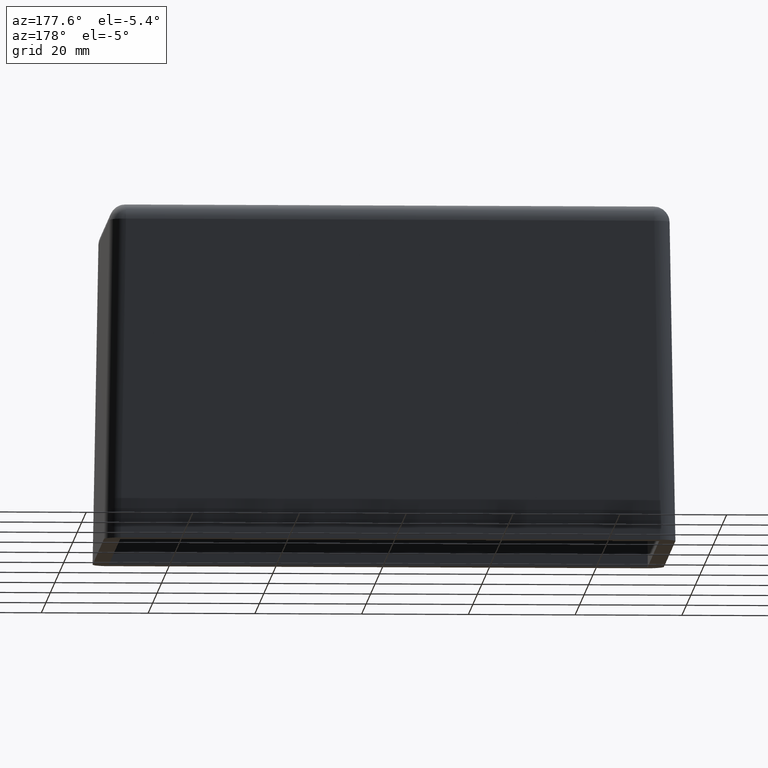
[diagram: clean part render]
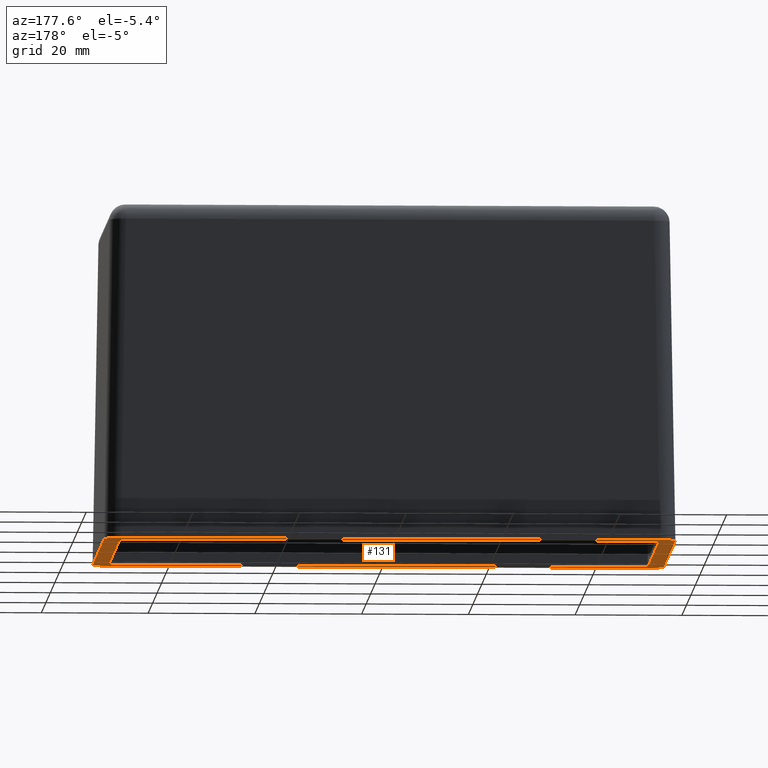
[diagram: same view with one face highlighted and labeled with its STEP entity id]
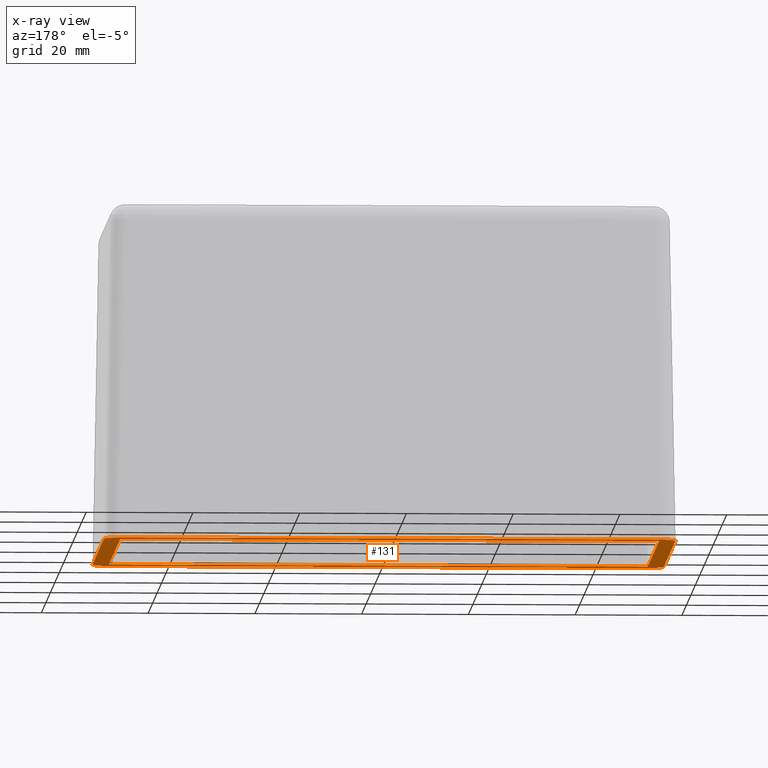
[diagram: x-ray of the same camera — body ghosted, the highlighted face saturated]
A machine part, auxiliary view. The second image highlights one B-rep face of the part: STEP entity #131.
The next image is the same camera in x-ray: the body ghosted, the highlighted face saturated — about 0% of this face is hidden behind the body in this view.
In plain terms, the highlighted planar face has unit normal (0, 0, 1).
Its self-contained STEP definition (entity closure, byte-faithful):
#131 = ADVANCED_FACE( '', ( #322, #323 ), #324, .F. );
#322 = FACE_OUTER_BOUND( '', #581, .T. );
#323 = FACE_BOUND( '', #582, .T. );
#324 = PLANE( '', #583 );
#581 = EDGE_LOOP( '', ( #1254, #1255, #1256, #1257, #1258, #1259, #1260, #1261 ) );
#582 = EDGE_LOOP( '', ( #1262, #1263, #1264, #1265 ) );
#583 = AXIS2_PLACEMENT_3D( '', #1266, #1267, #1268 );
#1254 = ORIENTED_EDGE( '', *, *, #1866, .F. );
#1255 = ORIENTED_EDGE( '', *, *, #1839, .T. );
#1256 = ORIENTED_EDGE( '', *, *, #1754, .F. );
#1257 = ORIENTED_EDGE( '', *, *, #1827, .T. );
#1258 = ORIENTED_EDGE( '', *, *, #1865, .F. );
#1259 = ORIENTED_EDGE( '', *, *, #1832, .T. );
#1260 = ORIENTED_EDGE( '', *, *, #1867, .F. );
#1261 = ORIENTED_EDGE( '', *, *, #1842, .T. );
#1262 = ORIENTED_EDGE( '', *, *, #1856, .F. );
#1263 = ORIENTED_EDGE( '', *, *, #1847, .F. );
#1264 = ORIENTED_EDGE( '', *, *, #1851, .F. );
#1265 = ORIENTED_EDGE( '', *, *, #1854, .F. );
#1266 = CARTESIAN_POINT( '', ( -53.0000000000000, -28.0000000000000, 0.000000000000000 ) );
#1267 = DIRECTION( '', ( 0.000000000000000, 0.000000000000000, 1.00000000000000 ) );
#1268 = DIRECTION( '', ( 0.000000000000000, -1.00000000000000, 0.000000000000000 ) );
#1754 = EDGE_CURVE( '', #2085, #2086, #2087, .F. );
#1827 = EDGE_CURVE( '', #2085, #2206, #2207, .F. );
#1832 = EDGE_CURVE( '', #2213, #2214, #2215, .F. );
#1839 = EDGE_CURVE( '', #2224, #2086, #2225, .F. );
#1842 = EDGE_CURVE( '', #2228, #2229, #2230, .F. );
#1847 = EDGE_CURVE( '', #2236, #2238, #2239, .T. );
#1851 = EDGE_CURVE( '', #2243, #2236, #2245, .T. );
#1854 = EDGE_CURVE( '', #2248, #2243, #2250, .T. );
#1856 = EDGE_CURVE( '', #2238, #2248, #2252, .T. );
#1865 = EDGE_CURVE( '', #2213, #2206, #2265, .F. );
#1866 = EDGE_CURVE( '', #2224, #2229, #2266, .F. );
#1867 = EDGE_CURVE( '', #2228, #2214, #2267, .F. );
#2085 = VERTEX_POINT( '', #2688 );
#2086 = VERTEX_POINT( '', #2689 );
#2087 = LINE( '', #2690, #2691 );
#2206 = VERTEX_POINT( '', #3062 );
#2207 = ELLIPSE( '', #3063, 3.00091389867315, 3.00000000000000 );
#2213 = VERTEX_POINT( '', #3071 );
#2214 = VERTEX_POINT( '', #3072 );
#2215 = ELLIPSE( '', #3073, 3.00091389867315, 3.00000000000000 );
#2224 = VERTEX_POINT( '', #3084 );
#2225 = ELLIPSE( '', #3085, 3.00091389867315, 3.00000000000000 );
#2228 = VERTEX_POINT( '', #3090 );
#2229 = VERTEX_POINT( '', #3091 );
#2230 = ELLIPSE( '', #3092, 3.00091389867315, 3.00000000000000 );
#2236 = VERTEX_POINT( '', #3101 );
#2238 = VERTEX_POINT( '', #3104 );
#2239 = LINE( '', #3105, #3106 );
#2243 = VERTEX_POINT( '', #3112 );
#2245 = LINE( '', #3115, #3116 );
#2248 = VERTEX_POINT( '', #3120 );
#2250 = LINE( '', #3123, #3124 );
#2252 = LINE( '', #3127, #3128 );
#2265 = LINE( '', #3149, #3150 );
#2266 = LINE( '', #3151, #3152 );
#2267 = LINE( '', #3153, #3154 );
#2688 = CARTESIAN_POINT( '', ( -53.5236519478465, 25.5241088623774, 0.000000000000000 ) );
#2689 = CARTESIAN_POINT( '', ( -53.5236519478465, -25.5241088623774, 0.000000000000000 ) );
#2690 = CARTESIAN_POINT( '', ( -53.5236519478465, -28.0000000000000, 0.000000000000000 ) );
#2691 = VECTOR( '', #3400, 1000.00000000000 );
#3062 = CARTESIAN_POINT( '', ( -50.5241088623774, 28.5236519478465, 0.000000000000000 ) );
#3063 = AXIS2_PLACEMENT_3D( '', #3447, #3448, #3449 );
#3071 = CARTESIAN_POINT( '', ( 50.5241088623774, 28.5236519478465, 0.000000000000000 ) );
#3072 = CARTESIAN_POINT( '', ( 53.5236519478465, 25.5241088623774, 0.000000000000000 ) );
#3073 = AXIS2_PLACEMENT_3D( '', #3458, #3459, #3460 );
#3084 = CARTESIAN_POINT( '', ( -50.5241088623774, -28.5236519478465, 0.000000000000000 ) );
#3085 = AXIS2_PLACEMENT_3D( '', #3475, #3476, #3477 );
#3090 = CARTESIAN_POINT( '', ( 53.5236519478465, -25.5241088623774, 0.000000000000000 ) );
#3091 = CARTESIAN_POINT( '', ( 50.5241088623774, -28.5236519478465, 0.000000000000000 ) );
#3092 = AXIS2_PLACEMENT_3D( '', #3480, #3481, #3482 );
#3101 = CARTESIAN_POINT( '', ( 50.4887418179901, 25.4887418179901, 0.000000000000000 ) );
#3104 = CARTESIAN_POINT( '', ( 50.4887418179901, -25.4887418179901, 0.000000000000000 ) );
#3105 = CARTESIAN_POINT( '', ( 50.4887418179901, 25.4887418179901, 0.000000000000000 ) );
#3106 = VECTOR( '', #3487, 1000.00000000000 );
#3112 = CARTESIAN_POINT( '', ( -50.4887418179901, 25.4887418179901, 0.000000000000000 ) );
#3115 = CARTESIAN_POINT( '', ( -50.4887418179901, 25.4887418179901, 0.000000000000000 ) );
#3116 = VECTOR( '', #3491, 1000.00000000000 );
#3120 = CARTESIAN_POINT( '', ( -50.4887418179901, -25.4887418179901, 0.000000000000000 ) );
#3123 = CARTESIAN_POINT( '', ( -50.4887418179901, -25.4887418179901, 0.000000000000000 ) );
#3124 = VECTOR( '', #3494, 1000.00000000000 );
#3127 = CARTESIAN_POINT( '', ( 50.4887418179901, -25.4887418179901, 0.000000000000000 ) );
#3128 = VECTOR( '', #3496, 1000.00000000000 );
#3149 = CARTESIAN_POINT( '', ( -53.0000000000000, 28.5236519478465, 0.000000000000000 ) );
#3150 = VECTOR( '', #3505, 1000.00000000000 );
#3151 = CARTESIAN_POINT( '', ( -53.0000000000000, -28.5236519478465, 0.000000000000000 ) );
#3152 = VECTOR( '', #3506, 1000.00000000000 );
#3153 = CARTESIAN_POINT( '', ( 53.5236519478465, -28.0000000000000, 0.000000000000000 ) );
#3154 = VECTOR( '', #3507, 1000.00000000000 );
#3400 = DIRECTION( '', ( 0.000000000000000, 1.00000000000000, 0.000000000000000 ) );
#3447 = CARTESIAN_POINT( '', ( -50.5231949637148, 25.5231949637148, 0.000000000000000 ) );
#3448 = DIRECTION( '', ( 0.000000000000000, 0.000000000000000, 1.00000000000000 ) );
#3449 = DIRECTION( '', ( -0.707106781186548, 0.707106781186548, 0.000000000000000 ) );
#3458 = CARTESIAN_POINT( '', ( 50.5231949637148, 25.5231949637148, 0.000000000000000 ) );
#3459 = DIRECTION( '', ( 0.000000000000000, 0.000000000000000, 1.00000000000000 ) );
#3460 = DIRECTION( '', ( 0.707106781186548, 0.707106781186548, 0.000000000000000 ) );
#3475 = CARTESIAN_POINT( '', ( -50.5231949637148, -25.5231949637148, 0.000000000000000 ) );
#3476 = DIRECTION( '', ( 0.000000000000000, 0.000000000000000, 1.00000000000000 ) );
#3477 = DIRECTION( '', ( -0.707106781186548, -0.707106781186548, 0.000000000000000 ) );
#3480 = CARTESIAN_POINT( '', ( 50.5231949637148, -25.5231949637148, 0.000000000000000 ) );
#3481 = DIRECTION( '', ( 0.000000000000000, 0.000000000000000, 1.00000000000000 ) );
#3482 = DIRECTION( '', ( 0.707106781186548, -0.707106781186548, 0.000000000000000 ) );
#3487 = DIRECTION( '', ( 0.000000000000000, -1.00000000000000, 0.000000000000000 ) );
#3491 = DIRECTION( '', ( 1.00000000000000, 0.000000000000000, 0.000000000000000 ) );
#3494 = DIRECTION( '', ( 0.000000000000000, 1.00000000000000, 0.000000000000000 ) );
#3496 = DIRECTION( '', ( -1.00000000000000, 0.000000000000000, 0.000000000000000 ) );
#3505 = DIRECTION( '', ( 1.00000000000000, 0.000000000000000, 0.000000000000000 ) );
#3506 = DIRECTION( '', ( -1.00000000000000, 0.000000000000000, 0.000000000000000 ) );
#3507 = DIRECTION( '', ( 0.000000000000000, -1.00000000000000, 0.000000000000000 ) );